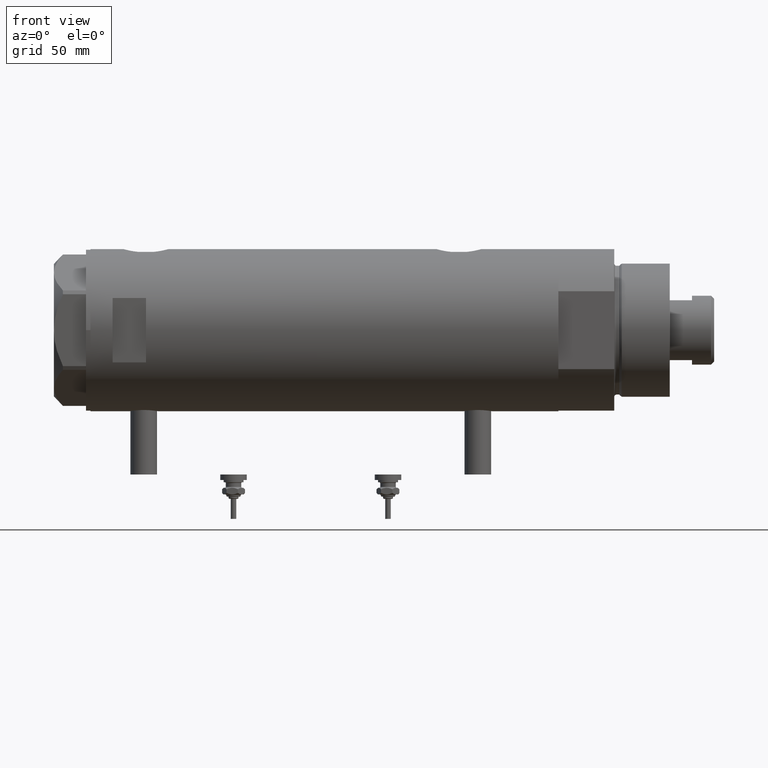
[diagram: clean part render]
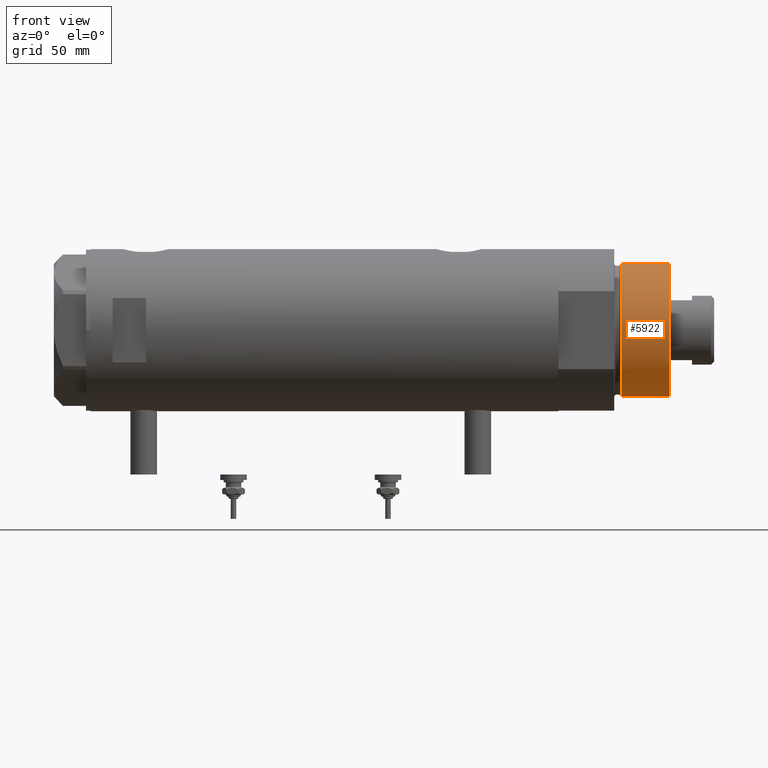
[diagram: same view with one face highlighted and labeled with its STEP entity id]
A machine part, front view. The second image highlights one B-rep face of the part: STEP entity #5922.
In plain terms, the highlighted cylindrical surface (partial cylindrical patch) has radius 30 mm, axis along (-1, -0, 0).
Its self-contained STEP definition (entity closure, byte-faithful):
#158 = CARTESIAN_POINT ( 'NONE',  ( -30.00000000000000000, 0.000000000000000000, 50.19999999999999574 ) ) ;
#420 = CARTESIAN_POINT ( 'NONE',  ( 0.000000000000000000, 0.000000000000000000, 50.19999999999999574 ) ) ;
#467 = VECTOR ( 'NONE', #2930, 1000.000000000000000 ) ;
#535 = EDGE_CURVE ( 'NONE', #1401, #3766, #4741, .T. ) ;
#622 = CARTESIAN_POINT ( 'NONE',  ( 30.00000000000000000, 3.673940397442058389E-15, 28.57384048104054486 ) ) ;
#772 = AXIS2_PLACEMENT_3D ( 'NONE', #1183, #1112, #3775 ) ;
#1112 = DIRECTION ( 'NONE',  ( -0.000000000000000000, -0.000000000000000000, -1.000000000000000000 ) ) ;
#1183 = CARTESIAN_POINT ( 'NONE',  ( 0.000000000000000000, 0.000000000000000000, 50.19999999999999574 ) ) ;
#1331 = CIRCLE ( 'NONE', #3995, 30.00000000000000000 ) ;
#1401 = VERTEX_POINT ( 'NONE', #4103 ) ;
#1725 = ORIENTED_EDGE ( 'NONE', *, *, #535, .F. ) ;
#1809 = CIRCLE ( 'NONE', #4562, 30.00000000000000000 ) ;
#1967 = VERTEX_POINT ( 'NONE', #2844 ) ;
#2027 = ORIENTED_EDGE ( 'NONE', *, *, #4519, .F. ) ;
#2062 = LINE ( 'NONE', #158, #4006 ) ;
#2426 = CARTESIAN_POINT ( 'NONE',  ( 0.000000000000000000, 0.000000000000000000, 28.57384048104054486 ) ) ;
#2431 = EDGE_LOOP ( 'NONE', ( #1725, #2027, #3502, #2472 ) ) ;
#2472 = ORIENTED_EDGE ( 'NONE', *, *, #2507, .T. ) ;
#2507 = EDGE_CURVE ( 'NONE', #2737, #3766, #1809, .T. ) ;
#2737 = VERTEX_POINT ( 'NONE', #4682 ) ;
#2844 = CARTESIAN_POINT ( 'NONE',  ( -30.00000000000000000, 0.000000000000000000, 50.19999999999999574 ) ) ;
#2930 = DIRECTION ( 'NONE',  ( -0.000000000000000000, -0.000000000000000000, -1.000000000000000000 ) ) ;
#3502 = ORIENTED_EDGE ( 'NONE', *, *, #5479, .T. ) ;
#3766 = VERTEX_POINT ( 'NONE', #622 ) ;
#3775 = DIRECTION ( 'NONE',  ( -1.000000000000000000, 0.000000000000000000, 0.000000000000000000 ) ) ;
#3995 = AXIS2_PLACEMENT_3D ( 'NONE', #420, #5867, #4881 ) ;
#4006 = VECTOR ( 'NONE', #4315, 1000.000000000000000 ) ;
#4103 = CARTESIAN_POINT ( 'NONE',  ( 30.00000000000000000, 3.673940397442058389E-15, 50.19999999999999574 ) ) ;
#4315 = DIRECTION ( 'NONE',  ( -0.000000000000000000, -0.000000000000000000, -1.000000000000000000 ) ) ;
#4519 = EDGE_CURVE ( 'NONE', #1967, #1401, #1331, .T. ) ;
#4562 = AXIS2_PLACEMENT_3D ( 'NONE', #2426, #4782, #5212 ) ;
#4633 = CARTESIAN_POINT ( 'NONE',  ( 30.00000000000000000, 3.673940397442058389E-15, 50.19999999999999574 ) ) ;
#4682 = CARTESIAN_POINT ( 'NONE',  ( -30.00000000000000000, 0.000000000000000000, 28.57384048104054486 ) ) ;
#4741 = LINE ( 'NONE', #4633, #467 ) ;
#4782 = DIRECTION ( 'NONE',  ( -0.000000000000000000, -0.000000000000000000, 1.000000000000000000 ) ) ;
#4881 = DIRECTION ( 'NONE',  ( 1.000000000000000000, 0.000000000000000000, 0.000000000000000000 ) ) ;
#5212 = DIRECTION ( 'NONE',  ( 1.000000000000000000, 0.000000000000000000, 0.000000000000000000 ) ) ;
#5217 = CYLINDRICAL_SURFACE ( 'NONE', #772, 30.00000000000000000 ) ;
#5281 = FACE_OUTER_BOUND ( 'NONE', #2431, .T. ) ;
#5479 = EDGE_CURVE ( 'NONE', #1967, #2737, #2062, .T. ) ;
#5867 = DIRECTION ( 'NONE',  ( 0.000000000000000000, 0.000000000000000000, 1.000000000000000000 ) ) ;
#5922 = ADVANCED_FACE ( 'NONE', ( #5281 ), #5217, .T. ) ;